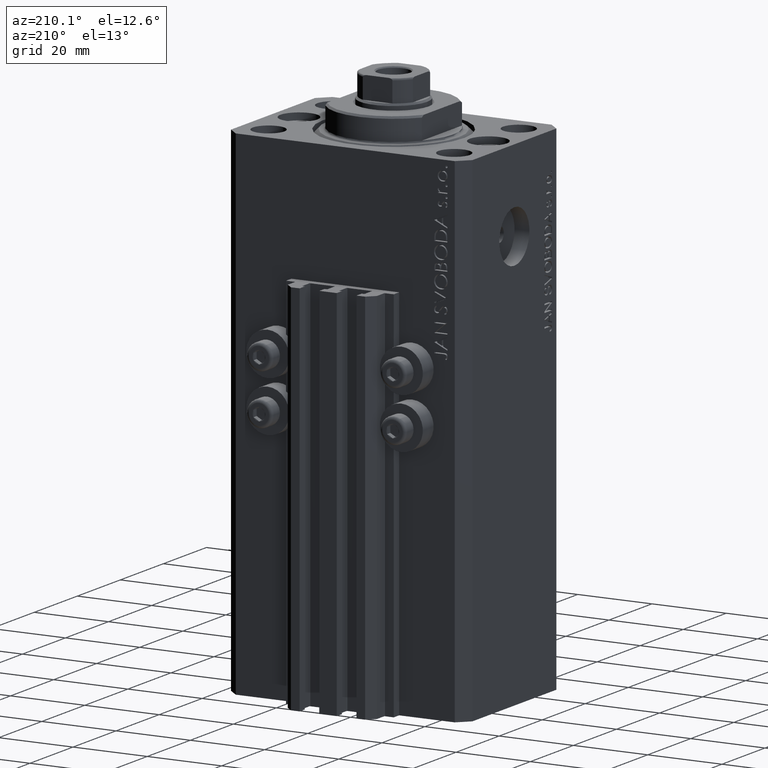
[diagram: clean part render]
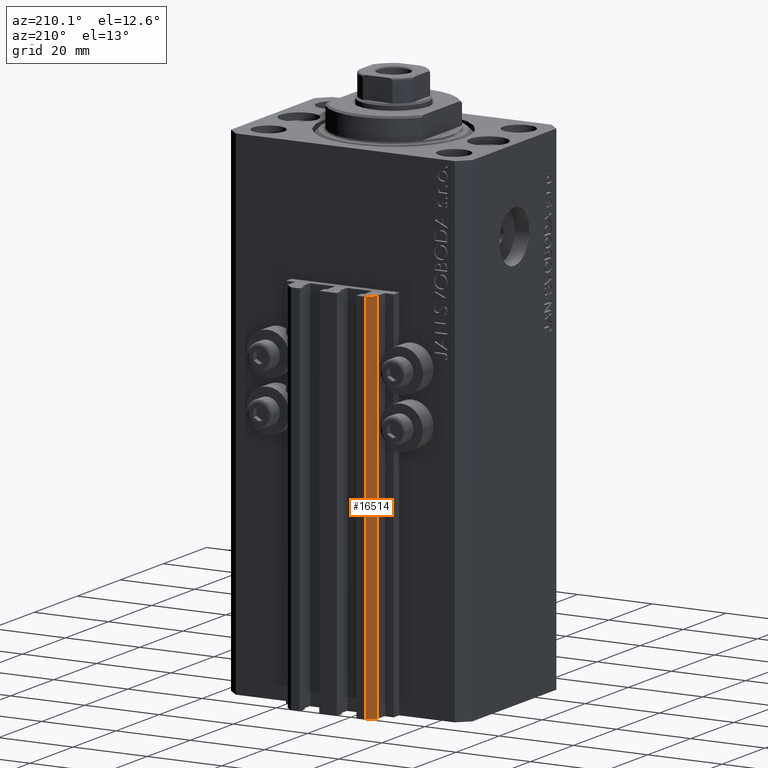
[diagram: same view with one face highlighted and labeled with its STEP entity id]
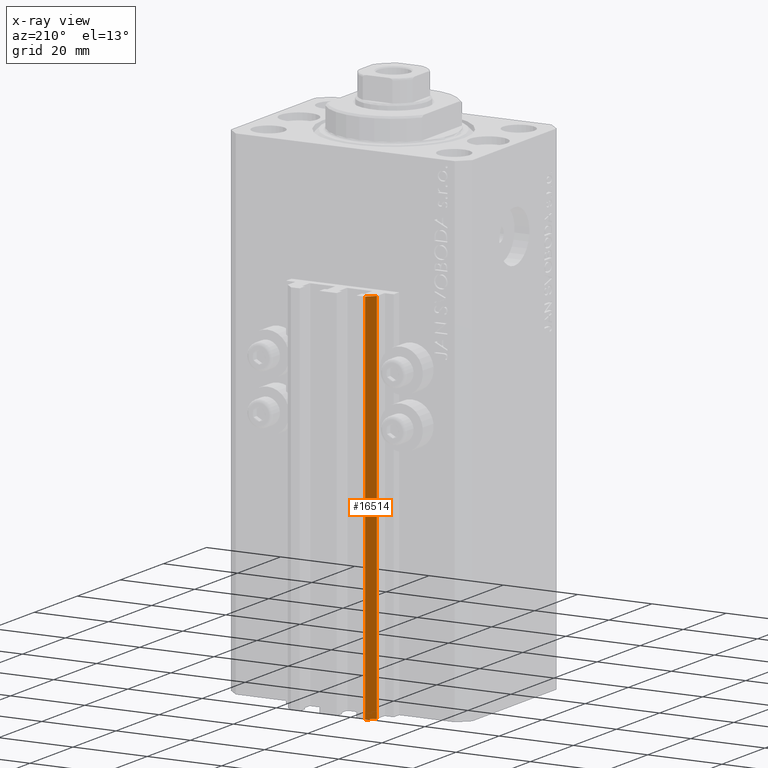
[diagram: x-ray of the same camera — body ghosted, the highlighted face saturated]
A machine part, auxiliary view. The second image highlights one B-rep face of the part: STEP entity #16514.
The next image is the same camera in x-ray: the body ghosted, the highlighted face saturated — about 0% of this face is hidden behind the body in this view.
In plain terms, the highlighted planar face has unit normal (-0.7071, 0.7071, 0).
Its self-contained STEP definition (entity closure, byte-faithful):
#479 = ORIENTED_EDGE ( 'NONE', *, *, #38147, .T. ) ;
#1346 = CARTESIAN_POINT ( 'NONE',  ( -10.00000000000000000, 30.49999999999948841, -134.0000000000000000 ) ) ;
#2718 = VERTEX_POINT ( 'NONE', #5512 ) ;
#5385 = VECTOR ( 'NONE', #26113, 999.9999999999998863 ) ;
#5512 = CARTESIAN_POINT ( 'NONE',  ( -12.00000000000000000, 28.49999999999948841, -134.0000000000000000 ) ) ;
#7190 = LINE ( 'NONE', #29133, #29149 ) ;
#8829 = ORIENTED_EDGE ( 'NONE', *, *, #23259, .F. ) ;
#10212 = VERTEX_POINT ( 'NONE', #16524 ) ;
#11682 = ORIENTED_EDGE ( 'NONE', *, *, #32309, .F. ) ;
#13170 = VERTEX_POINT ( 'NONE', #39747 ) ;
#13801 = AXIS2_PLACEMENT_3D ( 'NONE', #1346, #25928, #40503 ) ;
#14104 = VERTEX_POINT ( 'NONE', #43239 ) ;
#15228 = VECTOR ( 'NONE', #22778, 1000.000000000000000 ) ;
#16111 = LINE ( 'NONE', #30195, #15228 ) ;
#16514 = ADVANCED_FACE ( 'NONE', ( #40741 ), #30236, .T. ) ;
#16524 = CARTESIAN_POINT ( 'NONE',  ( -12.00000000000000000, 28.49999999999948841, -33.00000000000000000 ) ) ;
#22291 = CARTESIAN_POINT ( 'NONE',  ( -10.00000000000000000, 30.49999999999948841, -33.00000000000000000 ) ) ;
#22778 = DIRECTION ( 'NONE',  ( 0.000000000000000000, 0.000000000000000000, 1.000000000000000000 ) ) ;
#23259 = EDGE_CURVE ( 'NONE', #14104, #13170, #16111, .T. ) ;
#25874 = LINE ( 'NONE', #22291, #5385 ) ;
#25928 = DIRECTION ( 'NONE',  ( -0.7071067811865479058, 0.7071067811865472397, 0.000000000000000000 ) ) ;
#26113 = DIRECTION ( 'NONE',  ( -0.7071067811865472397, -0.7071067811865479058, 0.000000000000000000 ) ) ;
#27375 = CARTESIAN_POINT ( 'NONE',  ( -12.00000000000000000, 28.49999999999948841, -134.0000000000000000 ) ) ;
#29133 = CARTESIAN_POINT ( 'NONE',  ( -10.00000000000000000, 30.49999999999948841, -134.0000000000000000 ) ) ;
#29149 = VECTOR ( 'NONE', #46549, 999.9999999999998863 ) ;
#30195 = CARTESIAN_POINT ( 'NONE',  ( -10.00000000000000000, 30.49999999999948841, -134.0000000000000000 ) ) ;
#30236 = PLANE ( 'NONE',  #13801 ) ;
#32159 = EDGE_LOOP ( 'NONE', ( #11682, #8829, #479, #34873 ) ) ;
#32309 = EDGE_CURVE ( 'NONE', #13170, #10212, #25874, .T. ) ;
#34873 = ORIENTED_EDGE ( 'NONE', *, *, #39481, .T. ) ;
#38147 = EDGE_CURVE ( 'NONE', #14104, #2718, #7190, .T. ) ;
#39481 = EDGE_CURVE ( 'NONE', #2718, #10212, #46226, .T. ) ;
#39747 = CARTESIAN_POINT ( 'NONE',  ( -10.00000000000000000, 30.49999999999948841, -33.00000000000000000 ) ) ;
#40503 = DIRECTION ( 'NONE',  ( -0.7071067811865472397, -0.7071067811865479058, 0.000000000000000000 ) ) ;
#40643 = VECTOR ( 'NONE', #41948, 1000.000000000000000 ) ;
#40741 = FACE_OUTER_BOUND ( 'NONE', #32159, .T. ) ;
#41948 = DIRECTION ( 'NONE',  ( 0.000000000000000000, 0.000000000000000000, 1.000000000000000000 ) ) ;
#43239 = CARTESIAN_POINT ( 'NONE',  ( -10.00000000000000000, 30.49999999999948841, -134.0000000000000000 ) ) ;
#46226 = LINE ( 'NONE', #27375, #40643 ) ;
#46549 = DIRECTION ( 'NONE',  ( -0.7071067811865472397, -0.7071067811865479058, 0.000000000000000000 ) ) ;